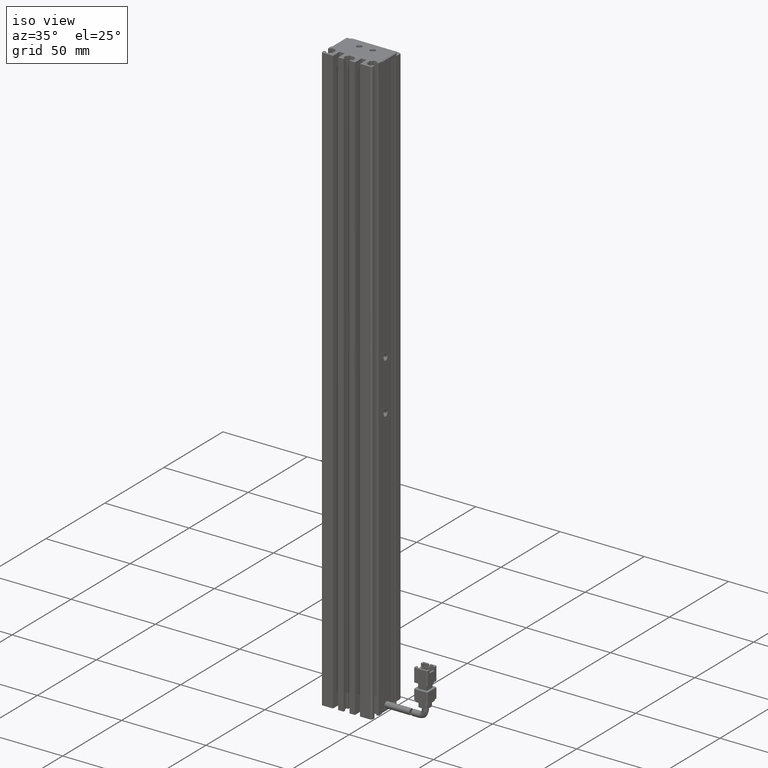
[diagram: clean part render]
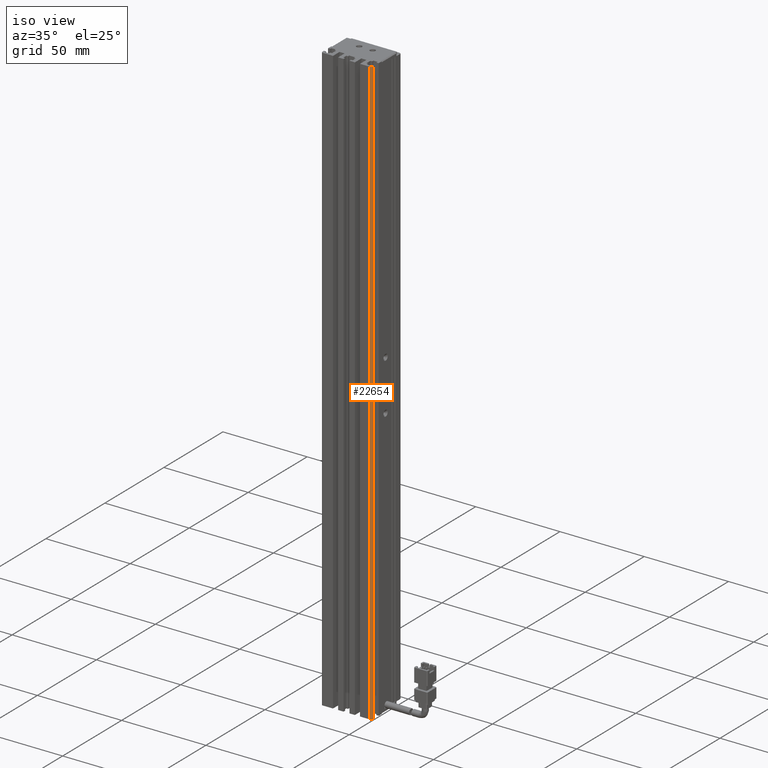
[diagram: same view with one face highlighted and labeled with its STEP entity id]
A machine part, iso view. The second image highlights one B-rep face of the part: STEP entity #22654.
In plain terms, the highlighted cylindrical surface (edge-blend (fillet) strip) has radius 1 mm, axis along (-0, -0, -1).
Its self-contained STEP definition (entity closure, byte-faithful):
#5439 = LINE ( 'NONE', #33447, #33165 ) ;
#8040 = VERTEX_POINT ( 'NONE', #66576 ) ;
#8835 = CARTESIAN_POINT ( 'NONE',  ( 54.92537974683542500, 11.69594479660387000, 60.00000000000001400 ) ) ;
#8968 = AXIS2_PLACEMENT_3D ( 'NONE', #23942, #60370, #29199 ) ;
#10017 = ORIENTED_EDGE ( 'NONE', *, *, #56487, .T. ) ;
#10441 = DIRECTION ( 'NONE',  ( -0.0000000000000000000, -0.0000000000000000000, -1.000000000000000000 ) ) ;
#14048 = DIRECTION ( 'NONE',  ( -1.000000000000000000, 0.0000000000000000000, 0.0000000000000000000 ) ) ;
#17173 = DIRECTION ( 'NONE',  ( -1.000000000000000000, 0.0000000000000000000, 0.0000000000000000000 ) ) ;
#20097 = AXIS2_PLACEMENT_3D ( 'NONE', #8835, #45199, #14048 ) ;
#22654 = ADVANCED_FACE ( 'NONE', ( #49513 ), #42945, .T. ) ;
#23942 = CARTESIAN_POINT ( 'NONE',  ( 54.92537974683542500, 11.69594479660387000, -290.0000000000000600 ) ) ;
#27892 = CIRCLE ( 'NONE', #8968, 1.000000000000000900 ) ;
#29199 = DIRECTION ( 'NONE',  ( -1.000000000000000000, 0.0000000000000000000, 0.0000000000000000000 ) ) ;
#29598 = ORIENTED_EDGE ( 'NONE', *, *, #43319, .T. ) ;
#31879 = CARTESIAN_POINT ( 'NONE',  ( 55.92537974683542500, 11.69594479660387000, 60.00000000000001400 ) ) ;
#33165 = VECTOR ( 'NONE', #38426, 1000.000000000000000 ) ;
#33447 = CARTESIAN_POINT ( 'NONE',  ( 55.92537974683542500, 11.69594479660387000, 60.00000000000001400 ) ) ;
#38426 = DIRECTION ( 'NONE',  ( 0.0000000000000000000, 0.0000000000000000000, 1.000000000000000000 ) ) ;
#40900 = AXIS2_PLACEMENT_3D ( 'NONE', #48152, #63901, #17173 ) ;
#42945 = CYLINDRICAL_SURFACE ( 'NONE', #40900, 1.000000000000000900 ) ;
#43319 = EDGE_CURVE ( 'NONE', #67468, #55659, #63496, .T. ) ;
#44160 = EDGE_LOOP ( 'NONE', ( #29598, #47969, #44343, #10017 ) ) ;
#44343 = ORIENTED_EDGE ( 'NONE', *, *, #50199, .T. ) ;
#45199 = DIRECTION ( 'NONE',  ( -0.0000000000000000000, -0.0000000000000000000, -1.000000000000000000 ) ) ;
#46578 = LINE ( 'NONE', #46840, #60442 ) ;
#46840 = CARTESIAN_POINT ( 'NONE',  ( 54.92537974683542500, 10.69594479660386800, 60.00000000000001400 ) ) ;
#47969 = ORIENTED_EDGE ( 'NONE', *, *, #65704, .T. ) ;
#48152 = CARTESIAN_POINT ( 'NONE',  ( 54.92537974683542500, 11.69594479660387000, 60.00000000000001400 ) ) ;
#49513 = FACE_OUTER_BOUND ( 'NONE', #44160, .T. ) ;
#50199 = EDGE_CURVE ( 'NONE', #58893, #8040, #27892, .T. ) ;
#55659 = VERTEX_POINT ( 'NONE', #60438 ) ;
#56487 = EDGE_CURVE ( 'NONE', #8040, #67468, #5439, .T. ) ;
#58893 = VERTEX_POINT ( 'NONE', #60674 ) ;
#60370 = DIRECTION ( 'NONE',  ( 0.0000000000000000000, 0.0000000000000000000, 1.000000000000000000 ) ) ;
#60438 = CARTESIAN_POINT ( 'NONE',  ( 54.92537974683542500, 10.69594479660386800, 60.00000000000001400 ) ) ;
#60442 = VECTOR ( 'NONE', #10441, 1000.000000000000000 ) ;
#60674 = CARTESIAN_POINT ( 'NONE',  ( 54.92537974683542500, 10.69594479660386800, -290.0000000000000600 ) ) ;
#63496 = CIRCLE ( 'NONE', #20097, 1.000000000000000900 ) ;
#63901 = DIRECTION ( 'NONE',  ( -0.0000000000000000000, -0.0000000000000000000, -1.000000000000000000 ) ) ;
#65704 = EDGE_CURVE ( 'NONE', #55659, #58893, #46578, .T. ) ;
#66576 = CARTESIAN_POINT ( 'NONE',  ( 55.92537974683542500, 11.69594479660387000, -290.0000000000000600 ) ) ;
#67468 = VERTEX_POINT ( 'NONE', #31879 ) ;